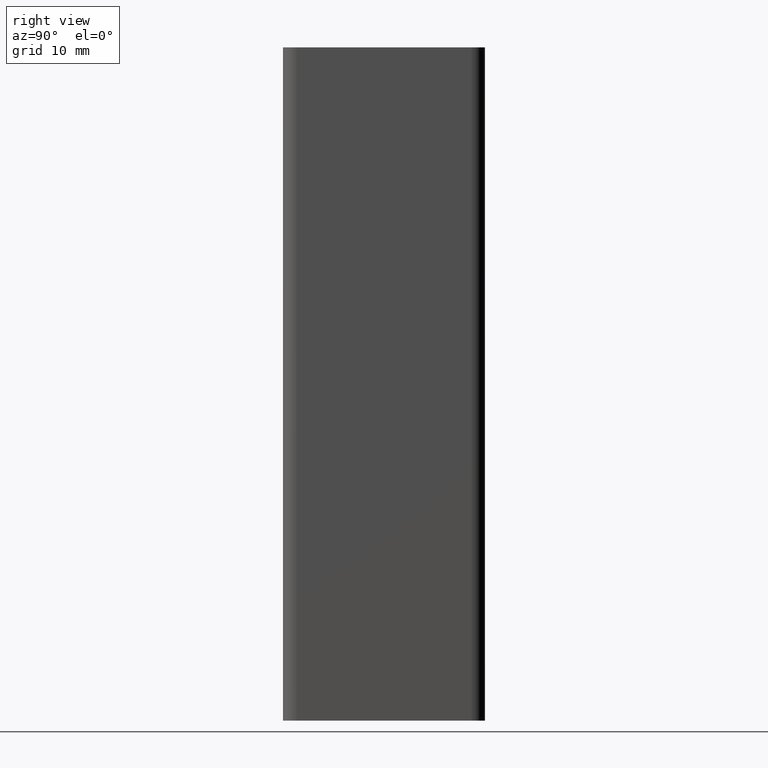
[diagram: clean part render]
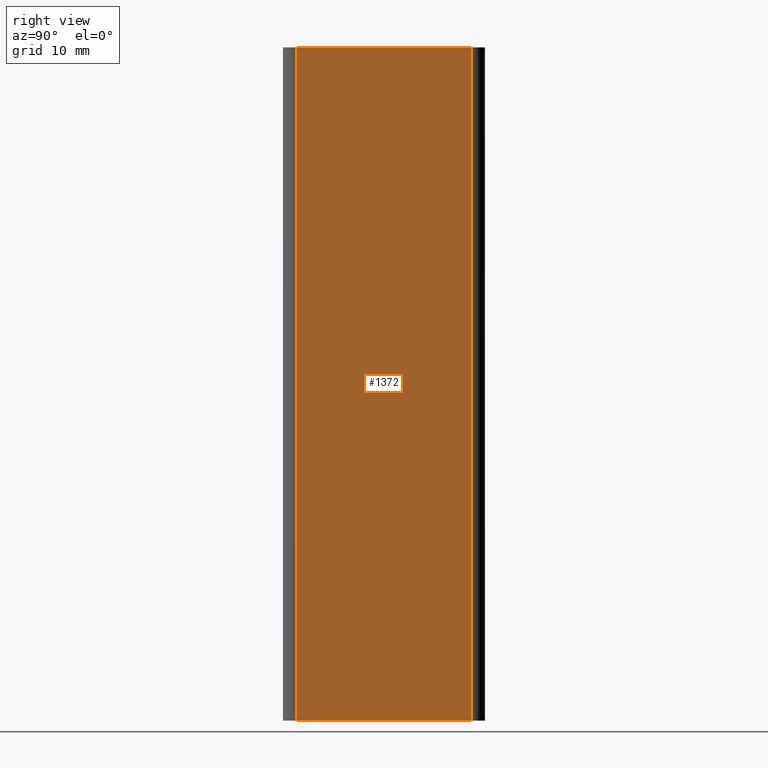
[diagram: same view with one face highlighted and labeled with its STEP entity id]
A machine part, right view. The second image highlights one B-rep face of the part: STEP entity #1372.
In plain terms, the highlighted planar face has unit normal (1, 0, 0).
Its self-contained STEP definition (entity closure, byte-faithful):
#155=FACE_OUTER_BOUND('',#224,.T.);
#224=EDGE_LOOP('',(#1111,#1112,#1113,#1114));
#381=LINE('',#2238,#532);
#382=LINE('',#2242,#533);
#383=LINE('',#2244,#534);
#384=LINE('',#2245,#535);
#532=VECTOR('',#1835,100.);
#533=VECTOR('',#1840,25.9999999739653);
#534=VECTOR('',#1841,100.);
#535=VECTOR('',#1842,25.9999999739653);
#664=VERTEX_POINT('',#2235);
#665=VERTEX_POINT('',#2237);
#666=VERTEX_POINT('',#2241);
#667=VERTEX_POINT('',#2243);
#854=EDGE_CURVE('',#665,#664,#381,.T.);
#856=EDGE_CURVE('',#664,#666,#382,.T.);
#857=EDGE_CURVE('',#667,#666,#383,.T.);
#858=EDGE_CURVE('',#665,#667,#384,.T.);
#1111=ORIENTED_EDGE('',*,*,#856,.T.);
#1112=ORIENTED_EDGE('',*,*,#857,.F.);
#1113=ORIENTED_EDGE('',*,*,#858,.F.);
#1114=ORIENTED_EDGE('',*,*,#854,.T.);
#1307=PLANE('',#1482);
#1372=ADVANCED_FACE('',(#155),#1307,.T.);
#1482=AXIS2_PLACEMENT_3D('',#2240,#1838,#1839);
#1835=DIRECTION('',(0.,0.,1.));
#1838=DIRECTION('center_axis',(1.,2.97539770897479E-11,0.));
#1839=DIRECTION('ref_axis',(-2.97539770599542E-11,1.,0.));
#1840=DIRECTION('',(2.97539770897479E-11,-1.,0.));
#1841=DIRECTION('',(0.,0.,1.));
#1842=DIRECTION('',(2.97539770897479E-11,-1.,0.));
#2235=CARTESIAN_POINT('',(14.9999999992264,12.9999999868977,100.));
#2237=CARTESIAN_POINT('',(14.9999999992264,12.9999999868977,0.));
#2238=CARTESIAN_POINT('',(14.9999999992264,12.9999999868977,0.));
#2240=CARTESIAN_POINT('Origin',(15.,-12.9999999870676,0.));
#2241=CARTESIAN_POINT('',(15.,-12.9999999870676,100.));
#2242=CARTESIAN_POINT('',(14.9999999998066,-6.4999999931159,100.));
#2243=CARTESIAN_POINT('',(15.,-12.9999999870676,0.));
#2244=CARTESIAN_POINT('',(15.,-12.9999999870676,0.));
#2245=CARTESIAN_POINT('',(14.9999999998066,-6.4999999931159,0.));